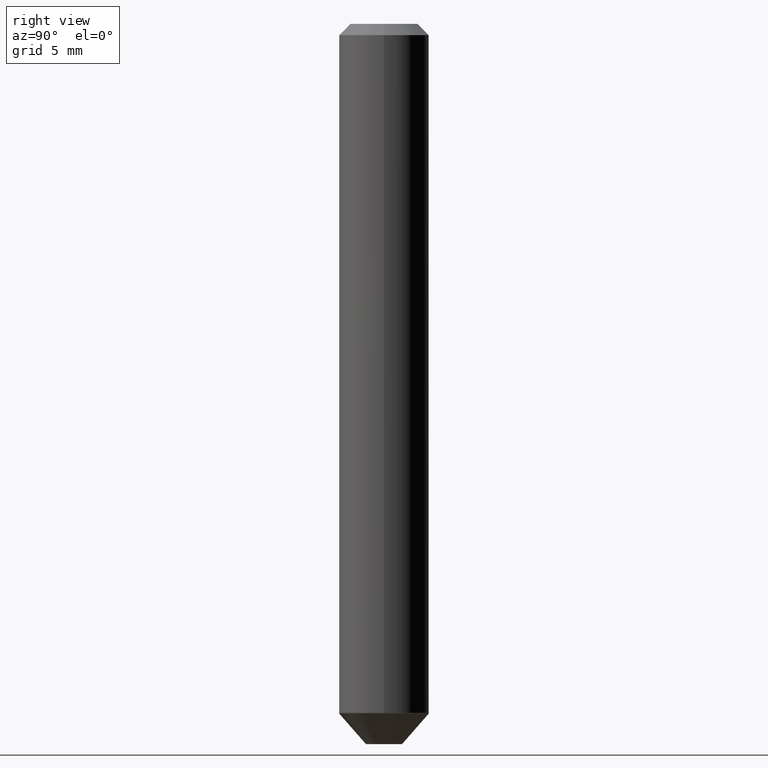
[diagram: clean part render]
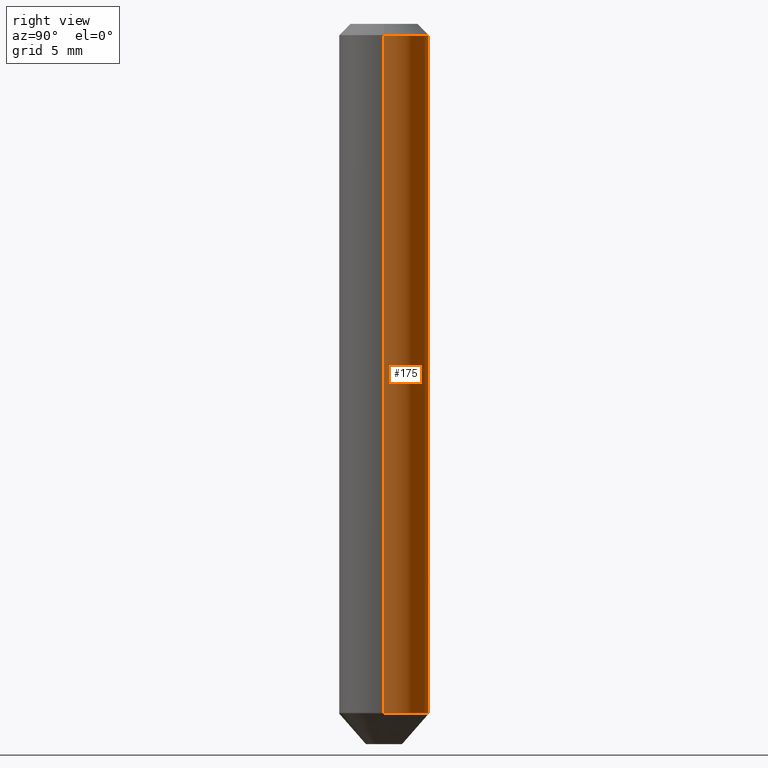
[diagram: same view with one face highlighted and labeled with its STEP entity id]
A machine part, right view. The second image highlights one B-rep face of the part: STEP entity #175.
In plain terms, the highlighted cylindrical surface (partial cylindrical patch) has radius 3.175 mm, axis along (-0, 0, 1).
Its self-contained STEP definition (entity closure, byte-faithful):
#13 = FACE_OUTER_BOUND ( 'NONE', #309, .T. ) ;
#14 = AXIS2_PLACEMENT_3D ( 'NONE', #85, #178, #397 ) ;
#37 = CARTESIAN_POINT ( 'NONE',  ( 0.1250000000000000278, -9.819791265496326367E-16, -0.03125000000000022898 ) ) ;
#41 = EDGE_CURVE ( 'NONE', #88, #300, #366, .T. ) ;
#48 = LINE ( 'NONE', #176, #315 ) ;
#49 = DIRECTION ( 'NONE',  ( -2.445468806185136877E-29, 3.491481338843145188E-15, 1.000000000000000000 ) ) ;
#85 = CARTESIAN_POINT ( 'NONE',  ( 4.678923307845477923E-29, -6.680262440437756036E-15, -1.913303206326507189 ) ) ;
#88 = VERTEX_POINT ( 'NONE', #117 ) ;
#96 = EDGE_CURVE ( 'NONE', #329, #224, #48, .T. ) ;
#110 = ORIENTED_EDGE ( 'NONE', *, *, #172, .T. ) ;
#116 = CARTESIAN_POINT ( 'NONE',  ( 0.000000000000000000, 0.000000000000000000, 0.000000000000000000 ) ) ;
#117 = CARTESIAN_POINT ( 'NONE',  ( 0.1250000000000002498, -7.553132775148540952E-15, -1.913303206326507189 ) ) ;
#150 = CYLINDRICAL_SURFACE ( 'NONE', #219, 0.1250000000000001388 ) ;
#152 = ORIENTED_EDGE ( 'NONE', *, *, #381, .F. ) ;
#159 = VECTOR ( 'NONE', #237, 39.37007874015748143 ) ;
#172 = EDGE_CURVE ( 'NONE', #88, #329, #264, .T. ) ;
#175 = ADVANCED_FACE ( 'NONE', ( #13 ), #150, .T. ) ;
#176 = CARTESIAN_POINT ( 'NONE',  ( -0.1250000000000001388, 8.881784197001262184E-16, -6.148668862818638533E-30 ) ) ;
#178 = DIRECTION ( 'NONE',  ( -2.445468806185136597E-29, 3.491481338843145583E-15, 1.000000000000000000 ) ) ;
#211 = CARTESIAN_POINT ( 'NONE',  ( 0.1250000000000001388, -8.728703347107843249E-16, 6.095220969744926748E-30 ) ) ;
#219 = AXIS2_PLACEMENT_3D ( 'NONE', #116, #246, #238 ) ;
#224 = VERTEX_POINT ( 'NONE', #344 ) ;
#230 = CIRCLE ( 'NONE', #316, 0.1250000000000000278 ) ;
#237 = DIRECTION ( 'NONE',  ( -2.445468806185136877E-29, 3.491481338843145188E-15, 1.000000000000000000 ) ) ;
#238 = DIRECTION ( 'NONE',  ( 1.000000000000000000, -6.982962677686266711E-15, 4.876176775795935793E-29 ) ) ;
#246 = DIRECTION ( 'NONE',  ( -2.445468806185136597E-29, 3.491481338843145583E-15, 1.000000000000000000 ) ) ;
#264 = CIRCLE ( 'NONE', #14, 0.1250000000000002498 ) ;
#265 = ORIENTED_EDGE ( 'NONE', *, *, #41, .F. ) ;
#285 = DIRECTION ( 'NONE',  ( -2.445468806185136597E-29, 3.491481338843145583E-15, 1.000000000000000000 ) ) ;
#300 = VERTEX_POINT ( 'NONE', #37 ) ;
#309 = EDGE_LOOP ( 'NONE', ( #110, #384, #152, #265 ) ) ;
#315 = VECTOR ( 'NONE', #49, 39.37007874015748143 ) ;
#316 = AXIS2_PLACEMENT_3D ( 'NONE', #326, #285, #352 ) ;
#326 = CARTESIAN_POINT ( 'NONE',  ( 7.642090019328607041E-31, -1.091087918388490883E-16, -0.03125000000000022898 ) ) ;
#329 = VERTEX_POINT ( 'NONE', #333 ) ;
#333 = CARTESIAN_POINT ( 'NONE',  ( -0.1250000000000002498, -5.792084020737628437E-15, -1.913303206326507189 ) ) ;
#344 = CARTESIAN_POINT ( 'NONE',  ( -0.1250000000000000278, -2.506507196438174969E-15, -0.03125000000000022898 ) ) ;
#352 = DIRECTION ( 'NONE',  ( 1.000000000000000000, -6.982962677686265922E-15, 0.000000000000000000 ) ) ;
#366 = LINE ( 'NONE', #211, #159 ) ;
#381 = EDGE_CURVE ( 'NONE', #300, #224, #230, .T. ) ;
#384 = ORIENTED_EDGE ( 'NONE', *, *, #96, .T. ) ;
#397 = DIRECTION ( 'NONE',  ( 1.000000000000000000, -6.982962677686264344E-15, 0.000000000000000000 ) ) ;